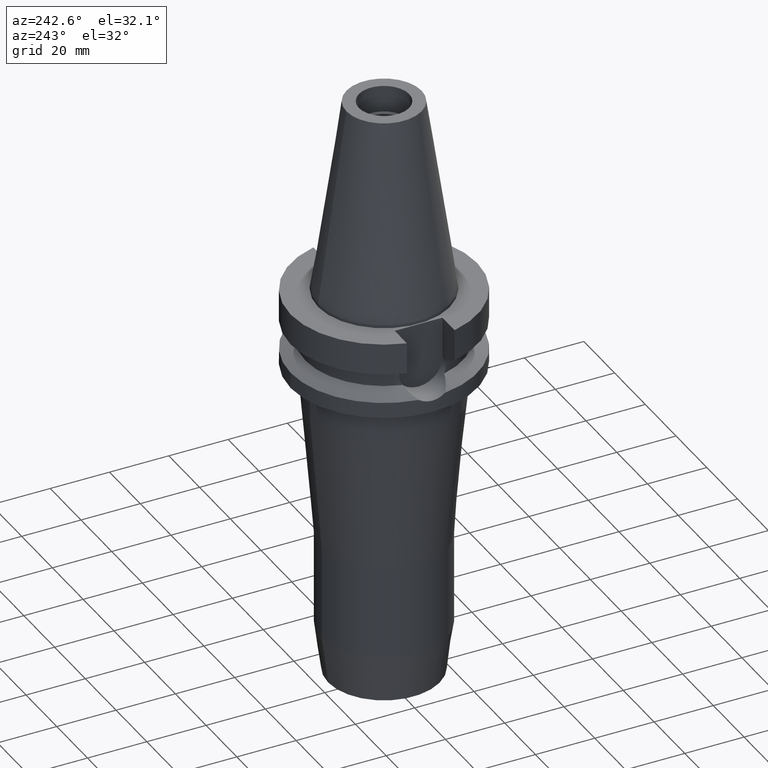
[diagram: clean part render]
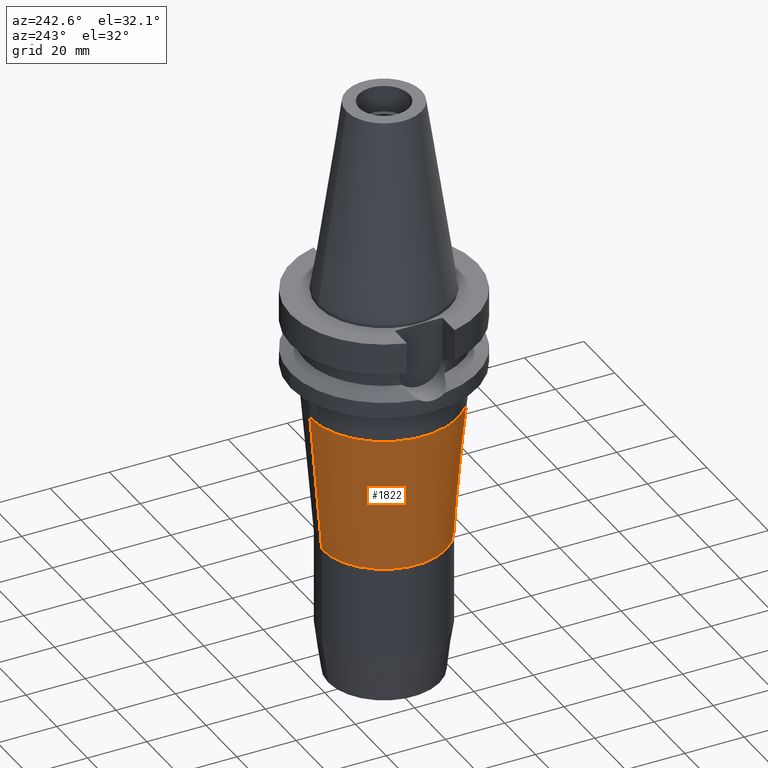
[diagram: same view with one face highlighted and labeled with its STEP entity id]
A machine part, auxiliary view. The second image highlights one B-rep face of the part: STEP entity #1822.
In plain terms, the highlighted conical surface has half-angle 4.8 deg.
Its self-contained STEP definition (entity closure, byte-faithful):
#492=DIRECTION('',(0.E0,-8.367784333232E-2,-9.964928592495E-1));
#493=VECTOR('',#492,4.780237922856E1);
#494=CARTESIAN_POINT('',(0.E0,2.5E1,-3.936527044360E1));
#495=LINE('',#494,#493);
#515=CARTESIAN_POINT('',(0.E0,0.E0,-3.936527044360E1));
#516=DIRECTION('',(0.E0,0.E0,1.E0));
#517=DIRECTION('',(0.E0,1.E0,0.E0));
#518=AXIS2_PLACEMENT_3D('',#515,#516,#517);
#523=DIRECTION('',(0.E0,8.367784333232E-2,-9.964928592495E-1));
#524=VECTOR('',#523,4.780237922856E1);
#525=CARTESIAN_POINT('',(0.E0,-2.5E1,-3.936527044360E1));
#526=LINE('',#525,#524);
#530=CARTESIAN_POINT('',(0.E0,0.E0,-8.7E1));
#531=DIRECTION('',(0.E0,0.E0,-1.E0));
#532=DIRECTION('',(0.E0,-1.E0,0.E0));
#533=AXIS2_PLACEMENT_3D('',#530,#531,#532);
#1240=CARTESIAN_POINT('',(0.E0,2.1E1,-8.7E1));
#1241=VERTEX_POINT('',#1240);
#1242=CARTESIAN_POINT('',(0.E0,-2.1E1,-8.7E1));
#1243=VERTEX_POINT('',#1242);
#1244=CARTESIAN_POINT('',(0.E0,2.5E1,-3.936527044360E1));
#1245=VERTEX_POINT('',#1244);
#1246=CARTESIAN_POINT('',(0.E0,-2.5E1,-3.936527044360E1));
#1247=VERTEX_POINT('',#1246);
#1810=CARTESIAN_POINT('',(0.E0,0.E0,-6.318263522180E1));
#1811=DIRECTION('',(0.E0,0.E0,1.E0));
#1812=DIRECTION('',(0.E0,1.E0,0.E0));
#1813=AXIS2_PLACEMENT_3D('',#1810,#1811,#1812);
#1814=CONICAL_SURFACE('',#1813,2.3E1,4.8E0);
#1815=ORIENTED_EDGE('',*,*,#1800,.F.);
#1817=ORIENTED_EDGE('',*,*,#1816,.T.);
#1818=ORIENTED_EDGE('',*,*,#1803,.T.);
#1819=ORIENTED_EDGE('',*,*,#1774,.T.);
#1820=EDGE_LOOP('',(#1815,#1817,#1818,#1819));
#1821=FACE_OUTER_BOUND('',#1820,.F.);
#519=CIRCLE('',#518,2.5E1);
#534=CIRCLE('',#533,2.1E1);
#1774=EDGE_CURVE('',#1243,#1241,#534,.T.);
#1800=EDGE_CURVE('',#1245,#1241,#495,.T.);
#1803=EDGE_CURVE('',#1247,#1243,#526,.T.);
#1816=EDGE_CURVE('',#1245,#1247,#519,.T.);
#1822=ADVANCED_FACE('',(#1821),#1814,.T.);